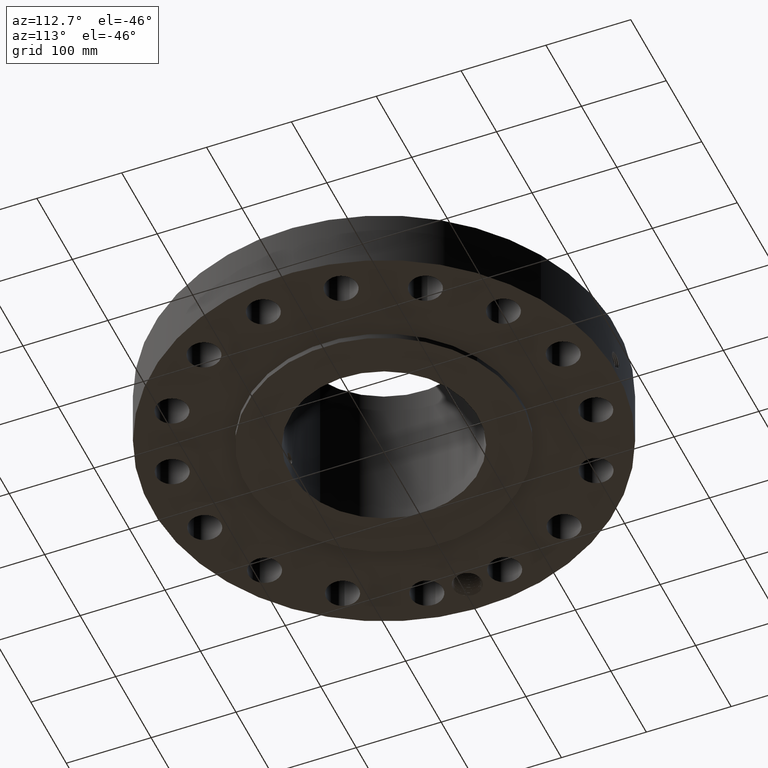
[diagram: clean part render]
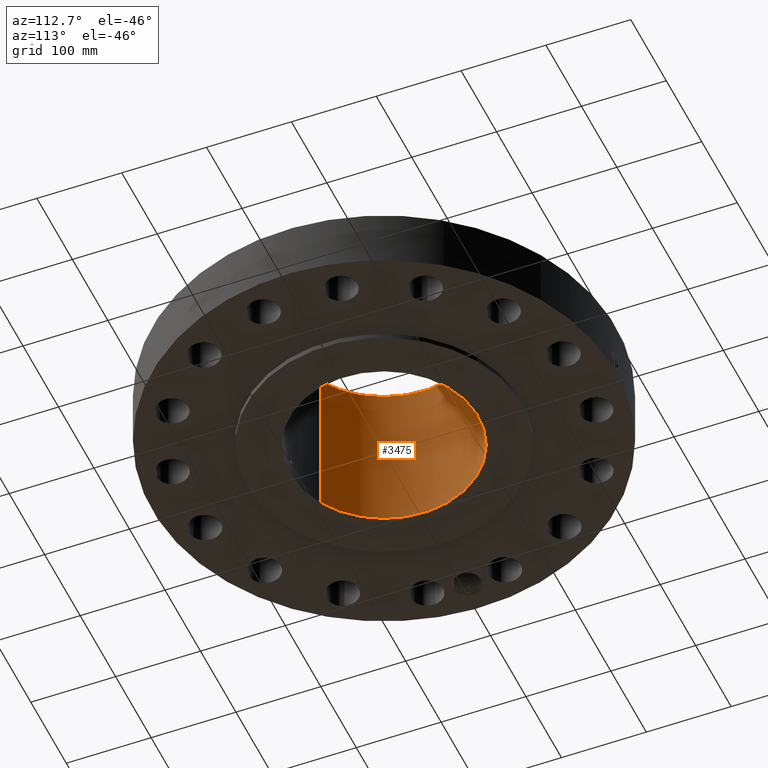
[diagram: same view with one face highlighted and labeled with its STEP entity id]
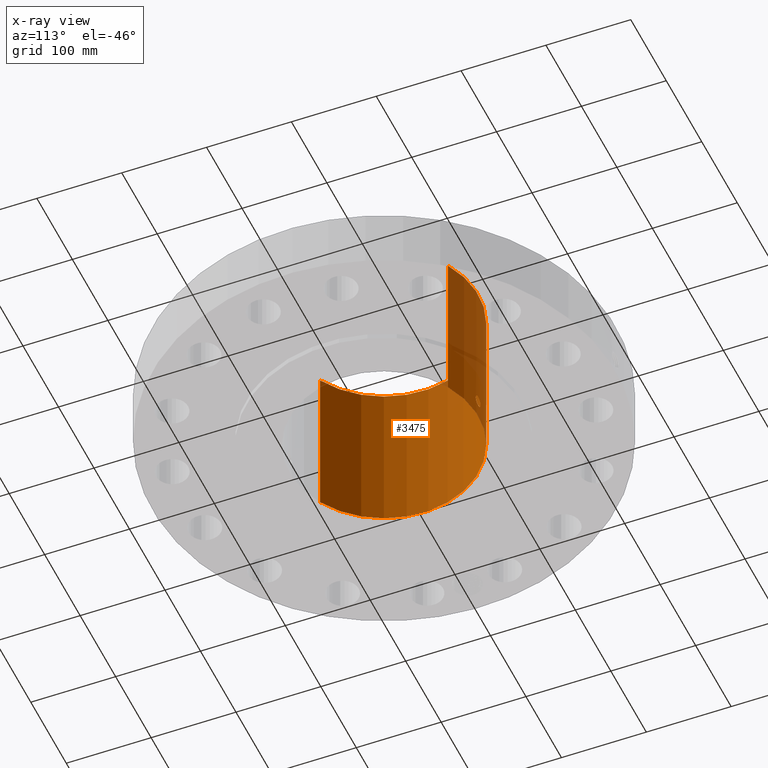
[diagram: x-ray of the same camera — body ghosted, the highlighted face saturated]
A machine part, auxiliary view. The second image highlights one B-rep face of the part: STEP entity #3475.
The next image is the same camera in x-ray: the body ghosted, the highlighted face saturated — about 14% of this face is hidden behind the body in this view.
In plain terms, the highlighted cylindrical surface (partial cylindrical patch) has radius 111.125 mm, axis along (0, 0, -1).
Its self-contained STEP definition (entity closure, byte-faithful):
#2618=AXIS2_PLACEMENT_3D('Circle Axis2P3D',#2616,#2617,$) ;
#3352=AXIS2_PLACEMENT_3D('Cylinder Axis2P3D',#3349,#3350,#3351) ;
#3424=AXIS2_PLACEMENT_3D('Circle Axis2P3D',#3422,#3423,$) ;
#2611=CARTESIAN_POINT('Vertex',(2.0974867314,3.83942370829,-1.56655091349E-014)) ;
#2613=CARTESIAN_POINT('Vertex',(-2.0974867314,-3.83942370829,-1.56655091349E-014)) ;
#2616=CARTESIAN_POINT('Axis2P3D Location',(0.,0.,0.)) ;
#3349=CARTESIAN_POINT('Axis2P3D Location',(0.,0.,3.75000000001)) ;
#3358=CARTESIAN_POINT('Vertex',(2.0974867314,3.83942370829,7.50000000003)) ;
#3360=CARTESIAN_POINT('Vertex',(-2.0974867314,-3.83942370829,7.50000000003)) ;
#3363=CARTESIAN_POINT('Line Origine',(2.0974867314,3.83942370829,3.75000000001)) ;
#3368=CARTESIAN_POINT('Line Origine',(-2.0974867314,-3.83942370829,3.75000000001)) ;
#3422=CARTESIAN_POINT('Axis2P3D Location',(0.,0.,7.50000000003)) ;
#3434=CARTESIAN_POINT('Control Point',(0.219395640473,4.3694954575,1.05985638466)) ;
#3435=CARTESIAN_POINT('Control Point',(0.206921825529,4.37012177709,1.08268954975)) ;
#3436=CARTESIAN_POINT('Control Point',(0.191478829916,4.37085255723,1.1038977572)) ;
#3437=CARTESIAN_POINT('Control Point',(0.173346694112,4.3716313096,1.12296857946)) ;
#3438=CARTESIAN_POINT('Control Point',(0.11214706787,4.3738833864,1.17244170234)) ;
#3439=CARTESIAN_POINT('Control Point',(0.0350000945294,4.37534654876,1.19596923858)) ;
#3440=CARTESIAN_POINT('Control Point',(-0.0195410405326,4.37545612446,1.19761227709)) ;
#3441=CARTESIAN_POINT('Control Point',(-0.124120681175,4.37384641052,1.17247985078)) ;
#3442=CARTESIAN_POINT('Control Point',(-0.203162153504,4.37051308473,1.0995908329)) ;
#3443=CARTESIAN_POINT('Control Point',(-0.232145156522,4.36887123256,1.05338868484)) ;
#3444=CARTESIAN_POINT('Control Point',(-0.255829519927,4.36751853964,0.975227532558)) ;
#3445=CARTESIAN_POINT('Control Point',(-0.24830222351,4.36794807787,0.895826649059)) ;
#3446=CARTESIAN_POINT('Control Point',(-0.24206798432,4.36830910102,0.869232995392)) ;
#3447=CARTESIAN_POINT('Control Point',(-0.232327425756,4.36884614287,0.843815089531)) ;
#3448=CARTESIAN_POINT('Control Point',(-0.219395640473,4.3694954575,0.820143615352)) ;
#3449=CARTESIAN_POINT('Vertex',(0.219395640473,4.3694954575,1.05985638466)) ;
#3451=CARTESIAN_POINT('Vertex',(-0.219395640473,4.3694954575,0.820143615352)) ;
#3455=CARTESIAN_POINT('Control Point',(-0.219395640473,4.3694954575,0.820143615352)) ;
#3456=CARTESIAN_POINT('Control Point',(-0.206921825535,4.37012177709,0.797310450264)) ;
#3457=CARTESIAN_POINT('Control Point',(-0.191478829931,4.37085255723,0.77610224283)) ;
#3458=CARTESIAN_POINT('Control Point',(-0.173346694091,4.3716313096,0.757031420527)) ;
#3459=CARTESIAN_POINT('Control Point',(-0.112147067855,4.3738833864,0.707558297664)) ;
#3460=CARTESIAN_POINT('Control Point',(-0.0350000945265,4.37534654876,0.684030761428)) ;
#3461=CARTESIAN_POINT('Control Point',(0.0195410405336,4.37545612446,0.682387722917)) ;
#3462=CARTESIAN_POINT('Control Point',(0.124120681106,4.37384641052,0.707520149211)) ;
#3463=CARTESIAN_POINT('Control Point',(0.203162153397,4.37051308474,0.780409167008)) ;
#3464=CARTESIAN_POINT('Control Point',(0.232145156566,4.36887123256,0.826611315314)) ;
#3465=CARTESIAN_POINT('Control Point',(0.255829519926,4.36751853964,0.904772467541)) ;
#3466=CARTESIAN_POINT('Control Point',(0.248302223506,4.36794807787,0.984173350987)) ;
#3467=CARTESIAN_POINT('Control Point',(0.242067984333,4.36830910102,1.01076700458)) ;
#3468=CARTESIAN_POINT('Control Point',(0.232327425765,4.36884614287,1.03618491046)) ;
#3469=CARTESIAN_POINT('Control Point',(0.219395640473,4.3694954575,1.05985638466)) ;
#2617=DIRECTION('Axis2P3D Direction',(0.,0.,-0.0393700787402)) ;
#3350=DIRECTION('Axis2P3D Direction',(0.,0.,-0.0393700787402)) ;
#3351=DIRECTION('Axis2P3D XDirection',(-0.0188750212049,-0.0345504945626,0.)) ;
#3364=DIRECTION('Vector Direction',(0.,0.,-0.0393700787402)) ;
#3369=DIRECTION('Vector Direction',(0.,0.,-0.0393700787402)) ;
#3423=DIRECTION('Axis2P3D Direction',(0.,0.,-0.0393700787402)) ;
#3365=VECTOR('Line Direction',#3364,0.0393700787402) ;
#3370=VECTOR('Line Direction',#3369,0.0393700787402) ;
#3428=ORIENTED_EDGE('',*,*,#3426,.F.) ;
#3429=ORIENTED_EDGE('',*,*,#3372,.T.) ;
#3430=ORIENTED_EDGE('',*,*,#2620,.T.) ;
#3431=ORIENTED_EDGE('',*,*,#3367,.F.) ;
#3472=ORIENTED_EDGE('',*,*,#3453,.F.) ;
#3473=ORIENTED_EDGE('',*,*,#3470,.F.) ;
#3474=FACE_BOUND('',#3471,.T.) ;
#3475=ADVANCED_FACE('PartBody',(#3432,#3474),#3353,.F.) ;
#3433=B_SPLINE_CURVE_WITH_KNOTS('',5,(#3434,#3435,#3436,#3437,#3438,#3439,#3440,#3441,#3442,#3443,#3444,#3445,#3446,#3447,#3448),.UNSPECIFIED.,.F.,.U.,(6,3,3,3,6),(0.,4.6743652641,14.0217474013,23.3717136086,28.217696028),.UNSPECIFIED.) ;
#3454=B_SPLINE_CURVE_WITH_KNOTS('',5,(#3455,#3456,#3457,#3458,#3459,#3460,#3461,#3462,#3463,#3464,#3465,#3466,#3467,#3468,#3469),.UNSPECIFIED.,.F.,.U.,(6,3,3,3,6),(0.,4.67436526186,14.0217473991,23.3717135936,28.2176960164),.UNSPECIFIED.) ;
#2619=CIRCLE('generated circle',#2618,4.37500000002) ;
#3425=CIRCLE('generated circle',#3424,4.37500000002) ;
#3353=CYLINDRICAL_SURFACE('generated cylinder',#3352,4.37500000002) ;
#2620=EDGE_CURVE('',#2614,#2612,#2619,.T.) ;
#3367=EDGE_CURVE('',#3359,#2612,#3366,.T.) ;
#3372=EDGE_CURVE('',#3361,#2614,#3371,.T.) ;
#3426=EDGE_CURVE('',#3361,#3359,#3425,.T.) ;
#3453=EDGE_CURVE('',#3450,#3452,#3433,.T.) ;
#3470=EDGE_CURVE('',#3452,#3450,#3454,.T.) ;
#3427=EDGE_LOOP('',(#3428,#3429,#3430,#3431)) ;
#3471=EDGE_LOOP('',(#3472,#3473)) ;
#3432=FACE_OUTER_BOUND('',#3427,.T.) ;
#3366=LINE('Line',#3363,#3365) ;
#3371=LINE('Line',#3368,#3370) ;
#2612=VERTEX_POINT('',#2611) ;
#2614=VERTEX_POINT('',#2613) ;
#3359=VERTEX_POINT('',#3358) ;
#3361=VERTEX_POINT('',#3360) ;
#3450=VERTEX_POINT('',#3449) ;
#3452=VERTEX_POINT('',#3451) ;